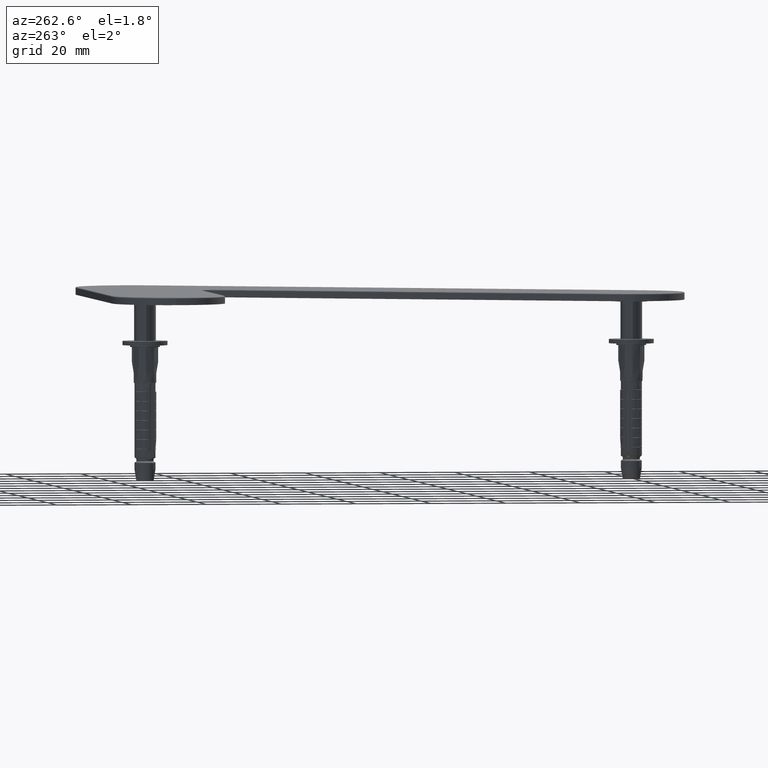
[diagram: clean part render]
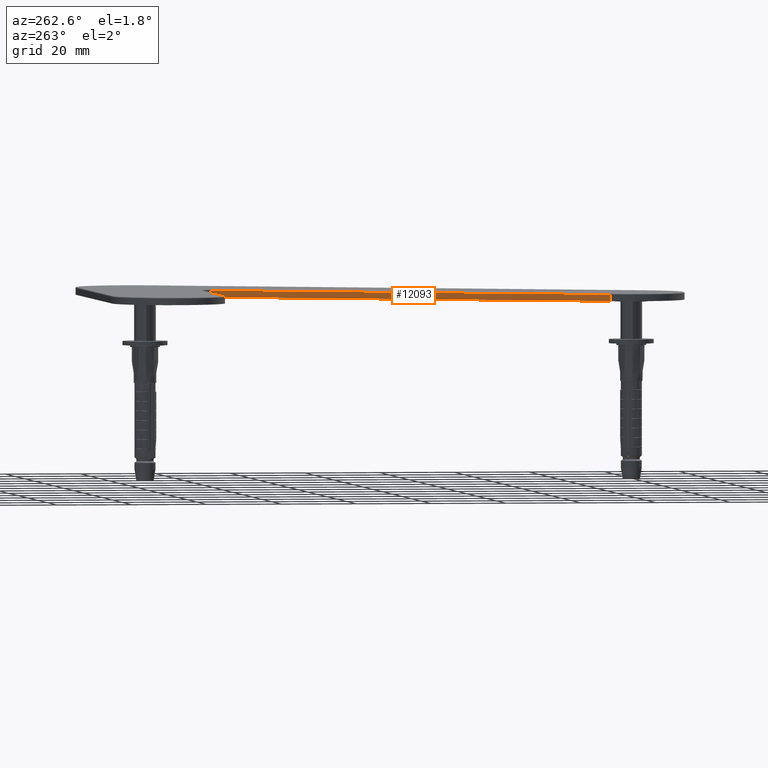
[diagram: same view with one face highlighted and labeled with its STEP entity id]
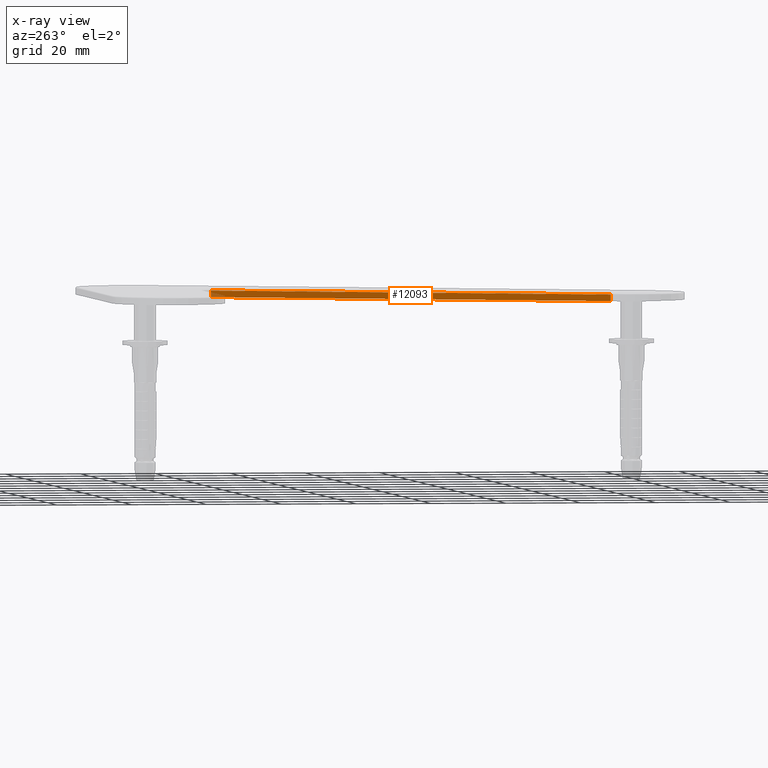
[diagram: x-ray of the same camera — body ghosted, the highlighted face saturated]
A machine part, auxiliary view. The second image highlights one B-rep face of the part: STEP entity #12093.
The next image is the same camera in x-ray: the body ghosted, the highlighted face saturated — about 2% of this face is hidden behind the body in this view.
In plain terms, the highlighted planar face has unit normal (0.9063, -0.4226, 0).
Its self-contained STEP definition (entity closure, byte-faithful):
#111 = LINE ( 'NONE', #26526, #34778 ) ;
#903 = DIRECTION ( 'NONE',  ( 0.9063077870366481603, -0.4226182617407033271, 0.000000000000000000 ) ) ;
#1102 = EDGE_CURVE ( 'NONE', #3097, #21219, #111, .T. ) ;
#1491 = DIRECTION ( 'NONE',  ( 0.4226182617407033271, 0.9063077870366481603, -0.000000000000000000 ) ) ;
#1755 = VERTEX_POINT ( 'NONE', #30035 ) ;
#2264 = ORIENTED_EDGE ( 'NONE', *, *, #19523, .T. ) ;
#2715 = DIRECTION ( 'NONE',  ( -0.000000000000000000, -0.000000000000000000, -1.000000000000000000 ) ) ;
#3097 = VERTEX_POINT ( 'NONE', #3112 ) ;
#3112 = CARTESIAN_POINT ( 'NONE',  ( -7.255342879439170112, 19.93389073166027359, 1.750000000000000000 ) ) ;
#4056 = CARTESIAN_POINT ( 'NONE',  ( 39.75569195856186155, 120.7493802820683300, 0.000000000000000000 ) ) ;
#6445 = AXIS2_PLACEMENT_3D ( 'NONE', #33127, #903, #18588 ) ;
#7280 = CARTESIAN_POINT ( 'NONE',  ( -7.255342879439171888, 19.93389073166026648, 1.750000000000000000 ) ) ;
#8815 = DIRECTION ( 'NONE',  ( -0.000000000000000000, -0.000000000000000000, -1.000000000000000000 ) ) ;
#9326 = EDGE_CURVE ( 'NONE', #1755, #25562, #36540, .T. ) ;
#12014 = VECTOR ( 'NONE', #2715, 1000.000000000000000 ) ;
#12093 = ADVANCED_FACE ( 'NONE', ( #20719 ), #15207, .F. ) ;
#13442 = VECTOR ( 'NONE', #37547, 1000.000000000000114 ) ;
#14550 = CARTESIAN_POINT ( 'NONE',  ( 39.75569195856186155, 120.7493802820683300, 2.000000000000000000 ) ) ;
#15207 = PLANE ( 'NONE',  #6445 ) ;
#17452 = VECTOR ( 'NONE', #1491, 1000.000000000000114 ) ;
#18588 = DIRECTION ( 'NONE',  ( 0.4226182617407033271, 0.9063077870366481603, 0.000000000000000000 ) ) ;
#19523 = EDGE_CURVE ( 'NONE', #25562, #21219, #32976, .T. ) ;
#20719 = FACE_OUTER_BOUND ( 'NONE', #36401, .T. ) ;
#21219 = VERTEX_POINT ( 'NONE', #34482 ) ;
#23575 = EDGE_CURVE ( 'NONE', #3097, #1755, #25279, .T. ) ;
#25279 = LINE ( 'NONE', #7280, #17452 ) ;
#25562 = VERTEX_POINT ( 'NONE', #4056 ) ;
#26526 = CARTESIAN_POINT ( 'NONE',  ( -7.255342879439170112, 19.93389073166027359, 2.000000000000000000 ) ) ;
#27433 = ORIENTED_EDGE ( 'NONE', *, *, #9326, .T. ) ;
#30035 = CARTESIAN_POINT ( 'NONE',  ( 39.75569195856186155, 120.7493802820683300, 1.750000000000000000 ) ) ;
#32976 = LINE ( 'NONE', #37669, #13442 ) ;
#33127 = CARTESIAN_POINT ( 'NONE',  ( -7.255342879439171888, 19.93389073166026648, 2.000000000000000000 ) ) ;
#34482 = CARTESIAN_POINT ( 'NONE',  ( -7.255342879439170112, 19.93389073166027359, 0.000000000000000000 ) ) ;
#34778 = VECTOR ( 'NONE', #8815, 1000.000000000000000 ) ;
#36401 = EDGE_LOOP ( 'NONE', ( #38345, #36987, #27433, #2264 ) ) ;
#36540 = LINE ( 'NONE', #14550, #12014 ) ;
#36987 = ORIENTED_EDGE ( 'NONE', *, *, #23575, .T. ) ;
#37547 = DIRECTION ( 'NONE',  ( -0.4226182617407033271, -0.9063077870366481603, -0.000000000000000000 ) ) ;
#37669 = CARTESIAN_POINT ( 'NONE',  ( -7.255342879439171888, 19.93389073166026648, 0.000000000000000000 ) ) ;
#38345 = ORIENTED_EDGE ( 'NONE', *, *, #1102, .F. ) ;